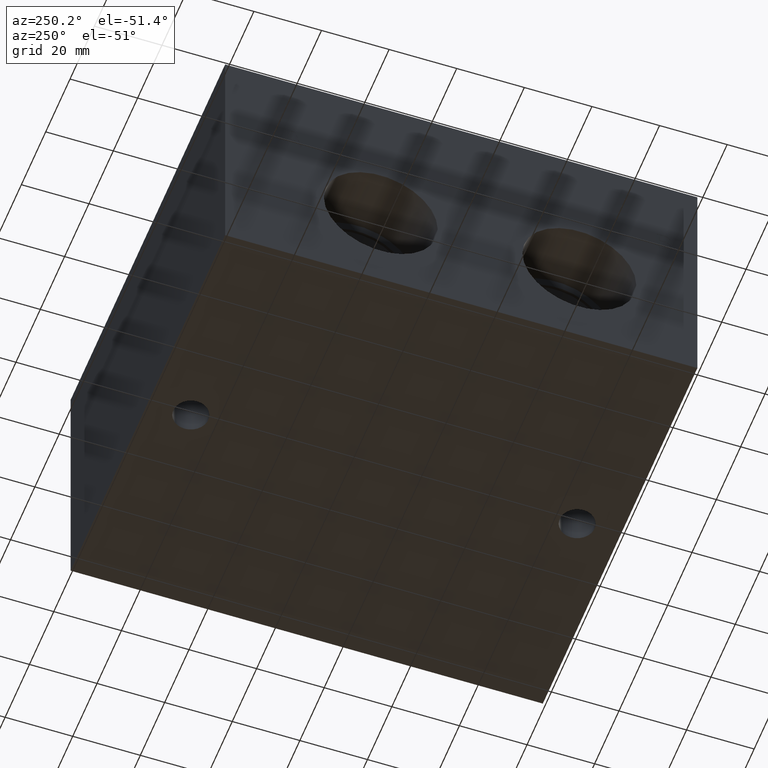
[diagram: clean part render]
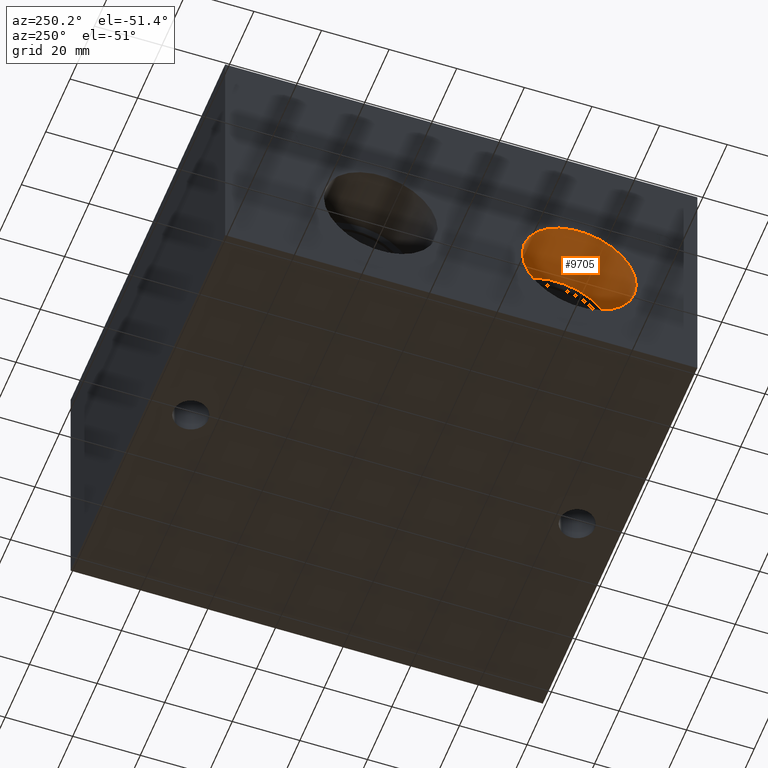
[diagram: same view with one face highlighted and labeled with its STEP entity id]
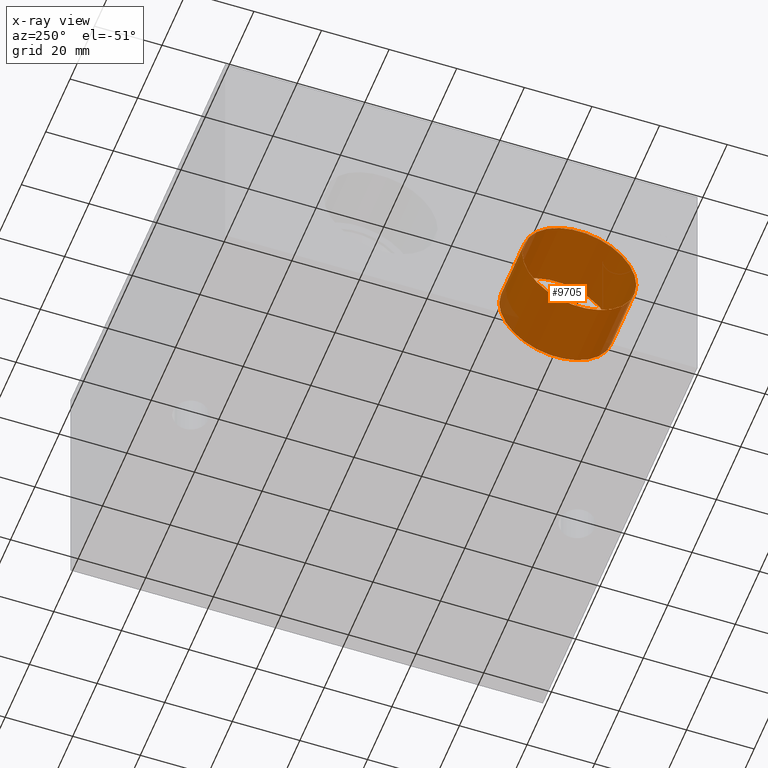
[diagram: x-ray of the same camera — body ghosted, the highlighted face saturated]
A machine part, auxiliary view. The second image highlights one B-rep face of the part: STEP entity #9705.
The next image is the same camera in x-ray: the body ghosted, the highlighted face saturated — about 4% of this face is hidden behind the body in this view.
In plain terms, the highlighted cylindrical surface (bore or boss wall) has radius 16.8529 mm, axis along (-1, 0, 0).
Its self-contained STEP definition (entity closure, byte-faithful):
#24=CYLINDRICAL_SURFACE('',#10124,16.8529);
#78=CIRCLE('',#10054,16.8529);
#79=CIRCLE('',#10055,16.8529);
#109=CIRCLE('',#10121,16.8529);
#110=CIRCLE('',#10122,16.8529);
#1023=FACE_OUTER_BOUND('',#1569,.T.);
#1569=EDGE_LOOP('',(#8441,#8442,#8443,#8444,#8445,#8446));
#2551=LINE('',#16375,#3495);
#3495=VECTOR('',#11872,16.8529);
#4555=VERTEX_POINT('',#16193);
#4556=VERTEX_POINT('',#16194);
#4614=VERTEX_POINT('',#16368);
#4615=VERTEX_POINT('',#16369);
#5842=EDGE_CURVE('',#4555,#4556,#78,.T.);
#5843=EDGE_CURVE('',#4556,#4555,#79,.T.);
#5922=EDGE_CURVE('',#4614,#4615,#109,.T.);
#5923=EDGE_CURVE('',#4615,#4614,#110,.T.);
#5925=EDGE_CURVE('',#4556,#4615,#2551,.T.);
#8441=ORIENTED_EDGE('',*,*,#5842,.F.);
#8442=ORIENTED_EDGE('',*,*,#5843,.F.);
#8443=ORIENTED_EDGE('',*,*,#5925,.T.);
#8444=ORIENTED_EDGE('',*,*,#5922,.F.);
#8445=ORIENTED_EDGE('',*,*,#5923,.F.);
#8446=ORIENTED_EDGE('',*,*,#5925,.F.);
#9705=ADVANCED_FACE('',(#1023),#24,.F.);
#10054=AXIS2_PLACEMENT_3D('',#16195,#11681,#11682);
#10055=AXIS2_PLACEMENT_3D('',#16196,#11683,#11684);
#10121=AXIS2_PLACEMENT_3D('',#16370,#11864,#11865);
#10122=AXIS2_PLACEMENT_3D('',#16371,#11866,#11867);
#10124=AXIS2_PLACEMENT_3D('',#16374,#11870,#11871);
#11681=DIRECTION('center_axis',(1.,0.,0.));
#11682=DIRECTION('ref_axis',(0.,1.,0.));
#11683=DIRECTION('center_axis',(1.,0.,0.));
#11684=DIRECTION('ref_axis',(0.,1.,0.));
#11864=DIRECTION('center_axis',(-1.,0.,0.));
#11865=DIRECTION('ref_axis',(0.,1.,0.));
#11866=DIRECTION('center_axis',(-1.,0.,0.));
#11867=DIRECTION('ref_axis',(0.,1.,0.));
#11870=DIRECTION('center_axis',(-1.,0.,0.));
#11871=DIRECTION('ref_axis',(0.,1.,0.));
#11872=DIRECTION('',(1.,0.,0.));
#16193=CARTESIAN_POINT('',(0.,51.7779,29.3624));
#16194=CARTESIAN_POINT('',(0.,18.0721,29.3624));
#16195=CARTESIAN_POINT('Origin',(0.,34.925,29.3624));
#16196=CARTESIAN_POINT('Origin',(0.,34.925,29.3624));
#16368=CARTESIAN_POINT('',(18.9992,51.7779,29.3624));
#16369=CARTESIAN_POINT('',(18.9992,18.0721,29.3624));
#16370=CARTESIAN_POINT('Origin',(18.9992,34.925,29.3624));
#16371=CARTESIAN_POINT('Origin',(18.9992,34.925,29.3624));
#16374=CARTESIAN_POINT('Origin',(9.4996,34.925,29.3624));
#16375=CARTESIAN_POINT('',(9.4996,18.0721,29.3624));